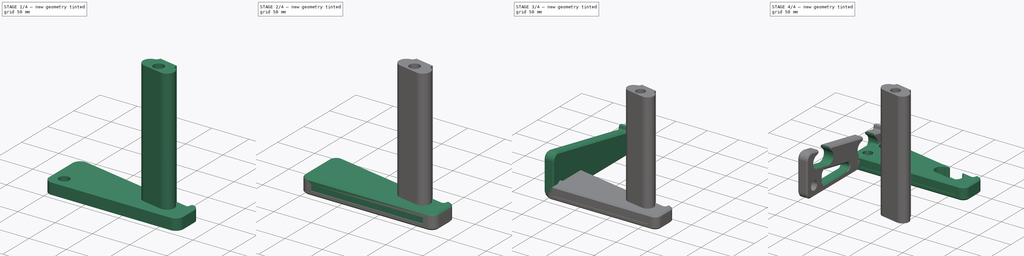
[diagram: build sequence overview — one tinted view per stage of 4, left to right]
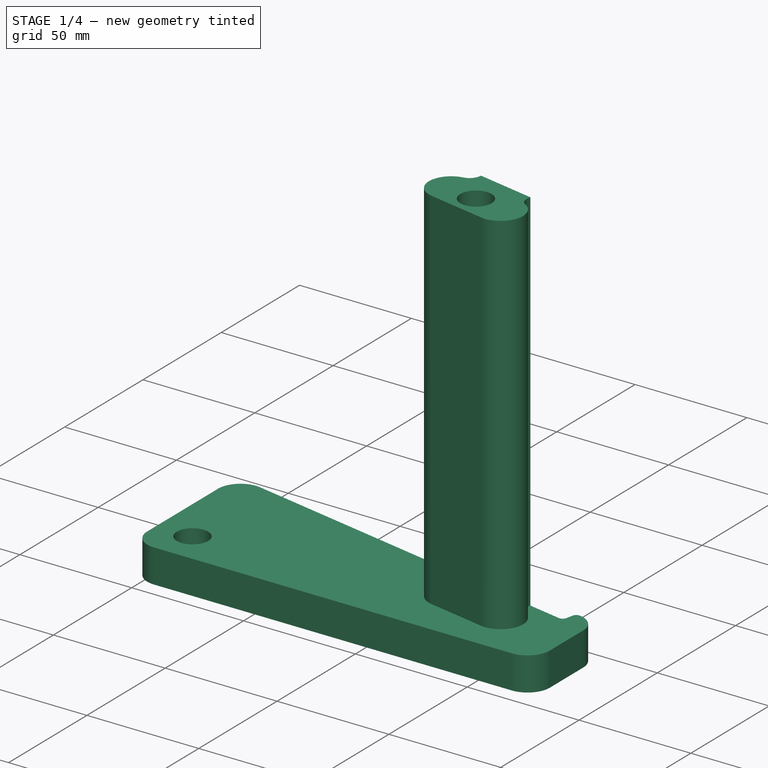
[diagram: stage 1 of 4 — iso view after this stage's code; geometry added in this stage tinted green]
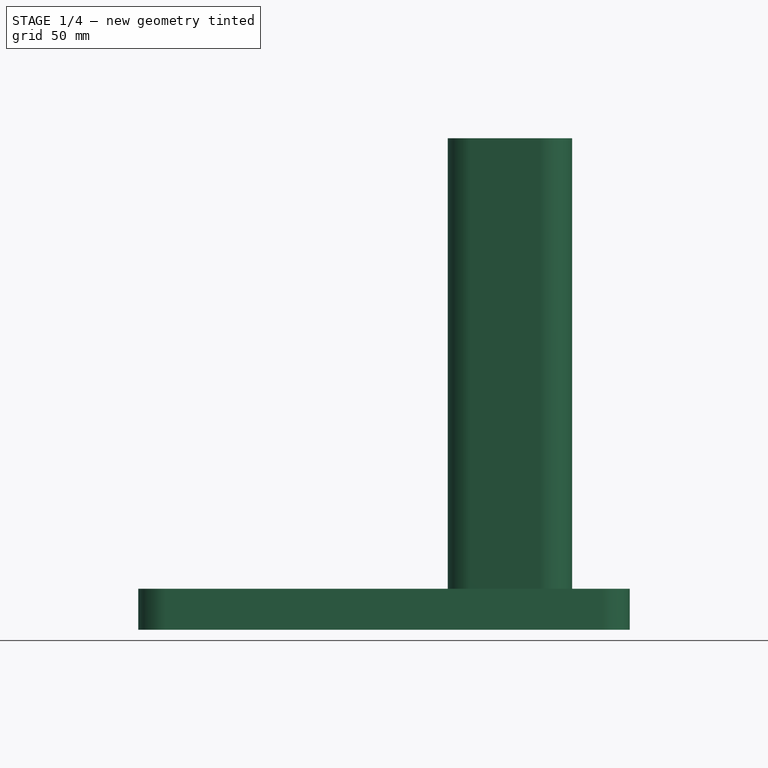
[diagram: stage 1 of 4 — front view after this stage's code; geometry added in this stage tinted green]
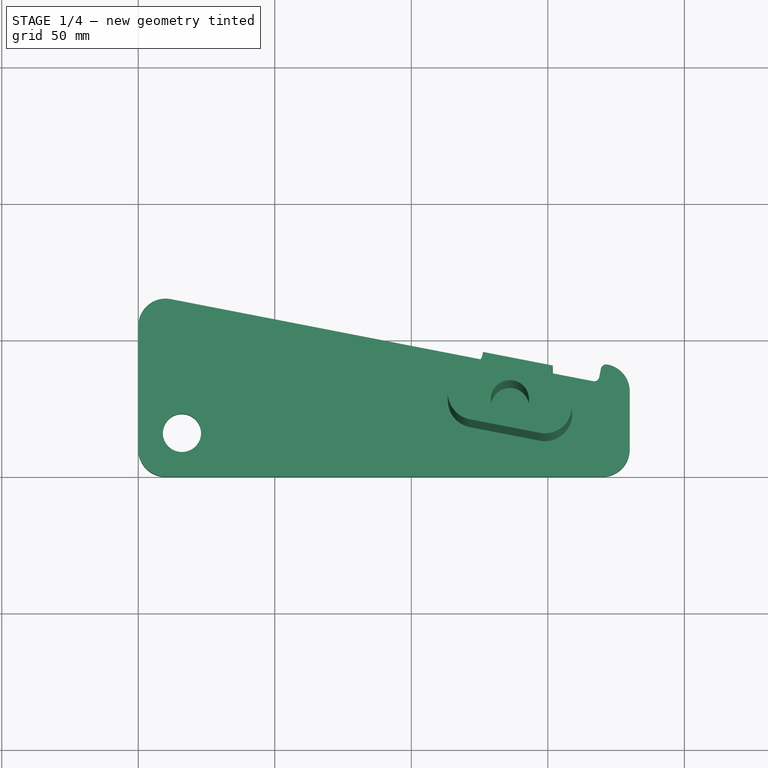
[diagram: stage 1 of 4 — top view after this stage's code; geometry added in this stage tinted green]
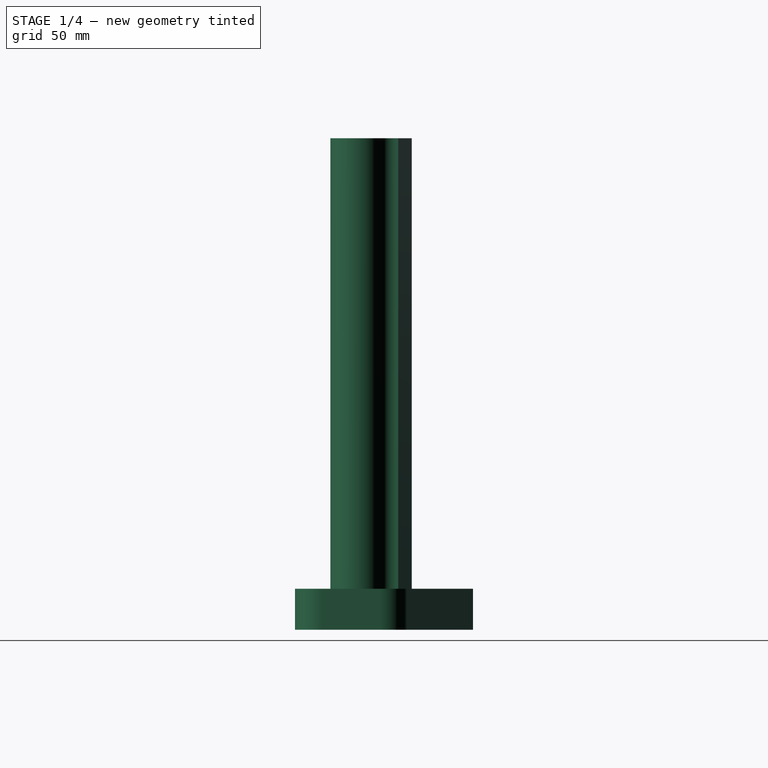
[diagram: stage 1 of 4 — right view after this stage's code; geometry added in this stage tinted green]
FCSTD DOCUMENT  (FreeCAD 0.21R33771 (Git))
Label: PedalRack
License: All rights reserved
LicenseURL: http://en.wikipedia.org/wiki/All_rights_reserved
objects: Sketcher::SketchObject×7, PartDesign::Pocket×5, PartDesign::Pad×3, PartDesign::Chamfer×3, PartDesign::Body×3, App::Part×3, Part::FeaturePython×2, Part::Part2DObjectPython×2, Spreadsheet::Sheet×1, PartDesign::FeatureBase×1
note: 37 computed .brp shape members not serialized (recipe doc carries the construction recipe); baked Part::Feature solids carry a one-line shape summary decoded from their .brp

FEATURE [Spreadsheet::Sheet] Spreadsheet  label="Cst"
  cells = B1='Rod diameter; C1='Depth; D1='Height; E1='Angle; F1='TopFillet; G1='Wall Thickness; H1='Chamfer; B2(Rod)=14; C2(Depth)=180; D2(Height)=65; E2(Angle)=11; F2(TopFillet)=10; G2(WallThickness)=15; H2(Chamfer)=2
FEATURE [Sketcher::SketchObject] Sketch
  FullyConstrained = true
  MapMode = 5
  Placement = pos=(0,0,0) rot=(0.57735,0.57735,0.57735;2.0944rad)
  Support = -> [YZ_Plane001]
  expr: Constraints[14] = <<Cst>>.Height
  expr: Constraints[15] = <<Cst>>.Depth
  expr: Constraints[16] = <<Cst>>.TopFillet
  expr: Constraints[19] = .Constraints.RodHoleDist
  expr: Constraints[23] = <<Cst>>.Angle
  expr: Constraints[33] = <<Cst>>.Rod
  sketch-geometry (13):
    g0: LineSegment StartX=0 StartY=10 StartZ=0 EndX=0 EndY=55.1837 EndZ=0
    g1: ArcOfCircle CenterX=10 CenterY=55.1837 CenterZ=0 NormalX=0 NormalY=0 NormalZ=1 AngleXU=0 Radius=10 StartAngle=1.37881 EndAngle=3.14159
    g2: LineSegment StartX=11.9081 StartY=65 StartZ=0 EndX=166.507 EndY=34.949 EndZ=0
    g3: ArcOfCircle CenterX=170 CenterY=31.2152 CenterZ=0 NormalX=0 NormalY=0 NormalZ=1 AngleXU=0 Radius=10 StartAngle=-6.2e-15 EndAngle=1.39646
    g4: LineSegment StartX=180 StartY=31.2152 StartZ=0 EndX=180 EndY=10 EndZ=0
    g5: ArcOfCircle CenterX=170 CenterY=10 CenterZ=0 NormalX=0 NormalY=0 NormalZ=1 AngleXU=0 Radius=10 StartAngle=4.71239 EndAngle=6.28319
    g6: LineSegment StartX=170 StartY=1.6e-14 StartZ=0 EndX=10 EndY=7.1e-15 EndZ=0
    g7: ArcOfCircle CenterX=10 CenterY=10 CenterZ=0 NormalX=0 NormalY=0 NormalZ=1 AngleXU=0 Radius=10 StartAngle=3.14159 EndAngle=4.71239
    g8: Circle CenterX=16 CenterY=16 CenterZ=0 NormalX=0 NormalY=0 NormalZ=1 AngleXU=0 Radius=7
    g9: LineSegment StartX=0 StartY=65.1837 StartZ=0 EndX=10 EndY=65.1837 EndZ=0
    g10: ArcOfCircle CenterX=171.388 CenterY=39.0939 CenterZ=0 NormalX=0 NormalY=0 NormalZ=1 AngleXU=0 Radius=2 StartAngle=1.39646 EndAngle=2.94961
    g11: LineSegment StartX=169.424 StartY=39.4755 StartZ=0 EndX=168.852 EndY=36.5306 EndZ=0
    g12: ArcOfCircle CenterX=166.889 CenterY=36.9123 CenterZ=0 NormalX=0 NormalY=0 NormalZ=1 AngleXU=0 Radius=2 StartAngle=4.5204 EndAngle=6.0912
  constraints (34):
    c: PointOnObject(g0,g-2)
    c: Tangent(g0,g1) = 1.5708
    c: Vertical(g4)
    c: Tangent(g4,g5) = 1.5708
    c: PointOnObject(g5,g-1)
    c: PointOnObject(g6,g-1)
    c: Tangent(g6,g7) = 1.5708
    c: PointOnObject(g0,g-2)
    c: Tangent(g1,g2) = 1.5708
    c: Tangent(g3,g4) = 1.5708
    c: Tangent(g5,g6) = 1.5708
    c: Tangent(g0,g7) = 1.5708
    c: Equal(g1,g3)
    c: Equal(g7,g5)
    c: DistanceY(g6,g1) = 65
    c: DistanceX(g0,g4) = 180
    c: Radius(g3) = 10
    c: Equal(g3,g5)
    c: DistanceX(g-1,g8) = 16  'RodHoleDist'
    c: DistanceY(g-1,g8) = 16
    c: PointOnObject(g9,g-2)
    c: Horizontal(g9)
    c: Tangent(g9,g1) = 1.5708
    c: Angle(g2,g6) = 0.191986
    c: Tangent(g3,g10) = -1.5708
    c: Perpendicular(g2,g11)
    c: Radius(g10) = 2
    c: Tangent(g10,g11) = -1.5708
    c: Tangent(g12,g11) = 1.5708
    c: Tangent(g12,g2) = -1.5708
    c: Equal(g10,g12)
    c: Distance(g11) = 3
    c: Distance(g2,g3) = 14
    c: Diameter(g8) = 14
FEATURE [PartDesign::Pad] Pad  label="BasePad"
  Direction = (1,-2e-16,3e-16)
  Length = 15
  Length2 = 10
  Placement = pos=(0,0,0) rot=(1,1,1;2.0944rad)
  Profile = -> Sketch
  ReferenceAxis = -> Sketch [N_Axis]
  Type = 0
  expr: Length = <<Cst>>.WallThickness
FEATURE [Part::FeaturePython] Clone  label="Pad001"  # Draft clone (typed FeaturePython)
  AttacherType = Attacher::AttachEngine3D
  Fuse = false
  Objects = -> [Pad]
  Placement = pos=(0,0,0) rot=(1,1,1;2.0944rad)
  Scale = (1,1,1)
FEATURE [PartDesign::FeatureBase] BaseFeature
  BaseFeature = -> Clone
FEATURE [Part::Part2DObjectPython] Clone2D001  label="RailsSketch (2D)001"  # Draft 2D object (typed FeaturePython)
  Fuse = false
  Objects = -> [Sketch004]
  Placement = pos=(0,0,5e-15) rot=(0,0,1;0rad)
  Scale = (1,1,1)
FEATURE [Sketcher::SketchObject] Sketch006
  ExternalGeometry = -> [Clone2D001]
  FullyConstrained = true
  MapMode = 5
  Support = -> [XY_Plane005]
  expr: Constraints[2] = <<Cst>>.Rod
  sketch-geometry (10):
    g0: GeomPoint X=136.132 Y=25.4277 Z=0
    g1: Circle CenterX=136.132 CenterY=25.4277 CenterZ=0 NormalX=0 NormalY=0 NormalZ=1 AngleXU=0 Radius=7
    g2: LineSegment StartX=126.07 StartY=41.7905 StartZ=0 EndX=126.26 EndY=42.7722 EndZ=0
    g3: LineSegment StartX=126.26 StartY=42.7722 StartZ=0 EndX=151.783 EndY=37.8111 EndZ=0
    g4: LineSegment StartX=151.783 StartY=37.8111 StartZ=0 EndX=151.592 EndY=36.8295 EndZ=0
    g5: LineSegment StartX=121.463 StartY=18.092 StartZ=0 EndX=146.985 EndY=13.1309 EndZ=0
    g6: ArcOfCircle CenterX=121.161 CenterY=42.7446 CenterZ=0 NormalX=0 NormalY=0 NormalZ=1 AngleXU=0 Radius=5 StartAngle=4.86024 EndAngle=6.0912
    g7: ArcOfCircle CenterX=156.5 CenterY=35.8755 CenterZ=0 NormalX=0 NormalY=0 NormalZ=1 AngleXU=0 Radius=5 StartAngle=2.94961 EndAngle=4.18057
    g8: ArcOfCircle CenterX=123.371 CenterY=27.9082 CenterZ=0 NormalX=0 NormalY=0 NormalZ=1 AngleXU=0 Radius=10 StartAngle=1.71865 EndAngle=4.5204
    g9: ArcOfCircle CenterX=148.893 CenterY=22.9472 CenterZ=0 NormalX=0 NormalY=0 NormalZ=1 AngleXU=0 Radius=10 StartAngle=4.5204 EndAngle=7.32216
  constraints (21):
    c: Symmetric(g-8,g-5,g0)
    c: Coincident(g1,g0)
    c: Diameter(g1) = 14
    c: Coincident(g2,g-7)
    c: Coincident(g2,g-3)
    c: Coincident(g3,g2)
    c: Coincident(g3,g-4)
    c: Coincident(g4,g3)
    c: Coincident(g4,g-6)
    c: Coincident(g5,g-8)
    c: Coincident(g5,g-5)
    c: Coincident(g6,g-7)
    c: Coincident(g6,g2)
    c: Coincident(g7,g-6)
    c: Coincident(g7,g4)
    c: Coincident(g8,g-8)
    c: Coincident(g8,g6)
    c: Coincident(g8,g5)
    c: Coincident(g9,g-5)
    c: Coincident(g9,g5)
    c: Coincident(g9,g7)
FEATURE [PartDesign::Pad] Pad002  label="Pad003"
  Direction = (0,0,1)
  Length = 180
  Length2 = 10
  Profile = -> Sketch006
  ReferenceAxis = -> Sketch006 [N_Axis]
  Refine = true
  Type = 0
FEATURE [PartDesign::Body] Body002
  Group = -> [Clone2D001,Sketch006,Pad002]
  Origin = -> Origin005
  Tip = -> Pad002
FEATURE [App::Part] Part002  label="Rail"
  Group = -> [Body002]
  Origin = -> Origin004
  Placement = pos=(-108.5,-7,0) rot=(0,0,1;0rad)
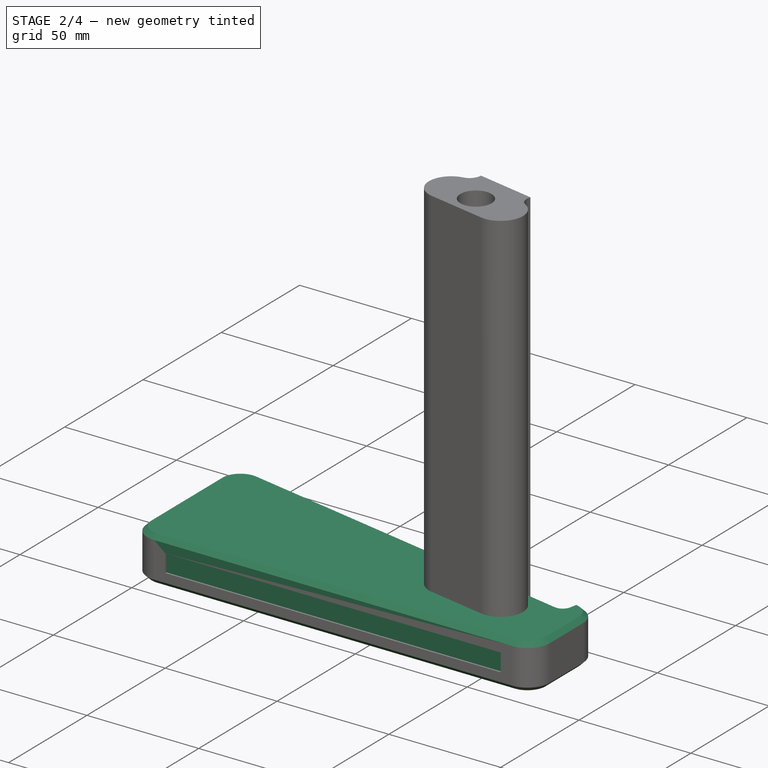
[diagram: stage 2 of 4 — iso view after this stage's code; geometry added in this stage tinted green]
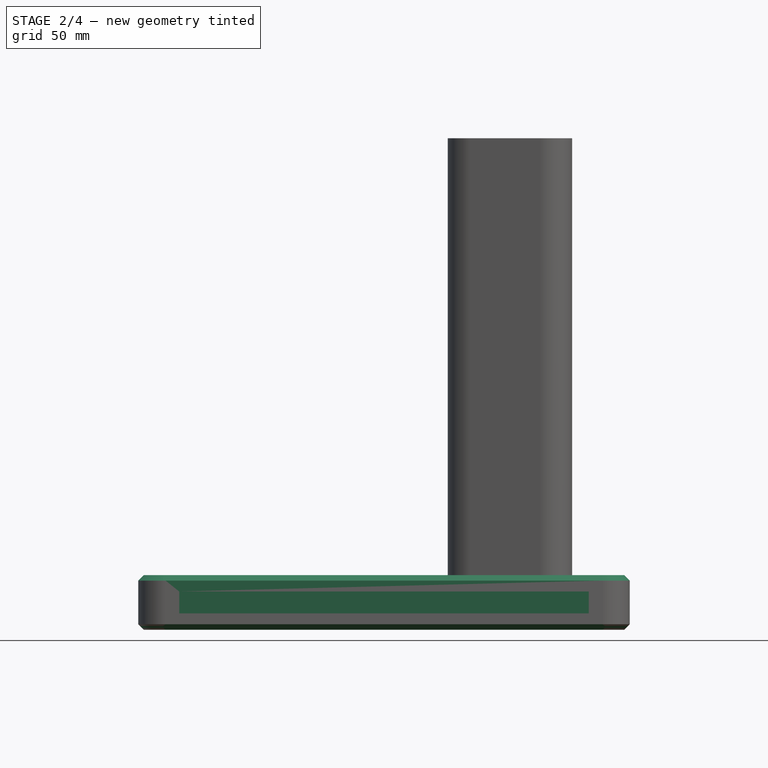
[diagram: stage 2 of 4 — front view after this stage's code; geometry added in this stage tinted green]
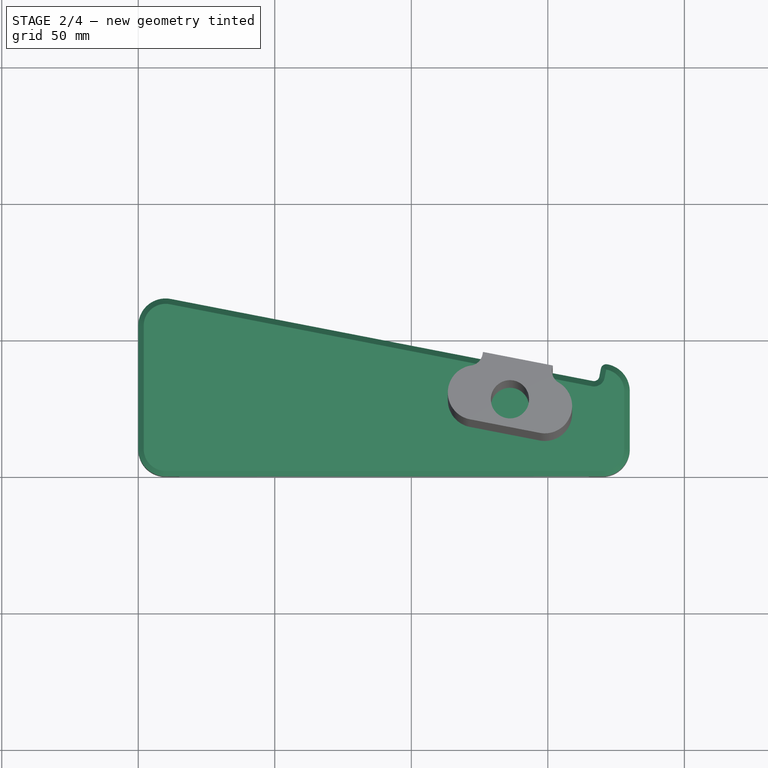
[diagram: stage 2 of 4 — top view after this stage's code; geometry added in this stage tinted green]
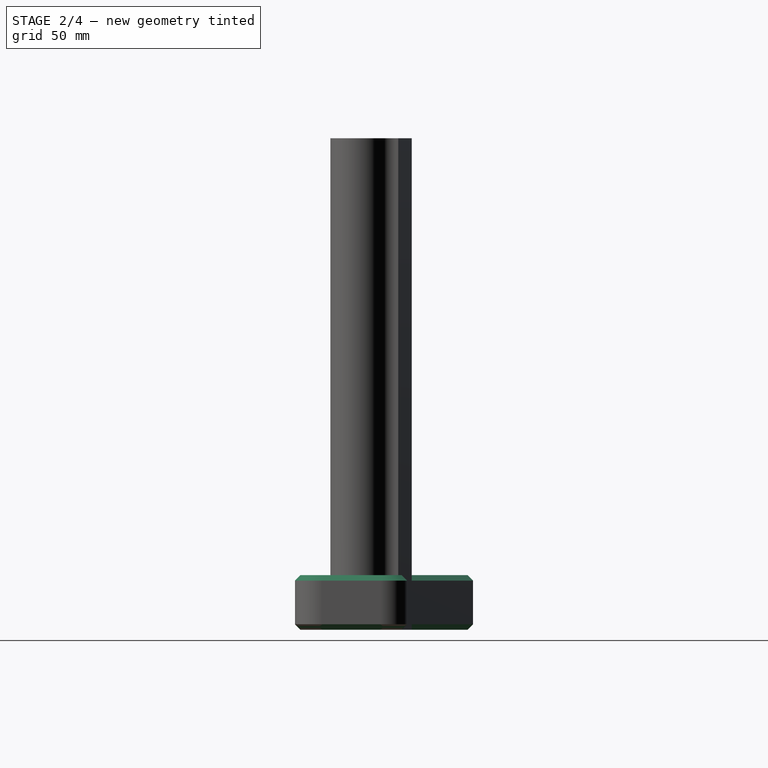
[diagram: stage 2 of 4 — right view after this stage's code; geometry added in this stage tinted green]
FEATURE [Sketcher::SketchObject] Sketch001
  ExternalGeometry = -> [BaseFeature]
  FullyConstrained = true
  MapMode = 5
  Placement = pos=(-6.7e-15,3.3e-15,15) rot=(0,0,1;0rad)
  Support = -> [BaseFeature]
  sketch-geometry (11):
    g0: LineSegment StartX=11.9081 StartY=65 StartZ=0 EndX=166.507 EndY=34.949 EndZ=0
    g1: LineSegment StartX=180 StartY=31.2152 StartZ=0 EndX=180 EndY=10 EndZ=0
    g2: LineSegment StartX=170 StartY=-3.38e-14 StartZ=0 EndX=10 EndY=3.6e-15 EndZ=0
    g3: LineSegment StartX=-1.8e-15 StartY=10 StartZ=0 EndX=1.0409e-12 EndY=55.1837 EndZ=0
    g4: ArcOfCircle CenterX=10 CenterY=55.1837 CenterZ=0 NormalX=0 NormalY=0 NormalZ=1 AngleXU=0 Radius=10 StartAngle=1.37881 EndAngle=3.14159
    g5: ArcOfCircle CenterX=170 CenterY=31.2152 CenterZ=0 NormalX=0 NormalY=0 NormalZ=1 AngleXU=0 Radius=10 StartAngle=0 EndAngle=1.39646
    g6: ArcOfCircle CenterX=170 CenterY=10 CenterZ=0 NormalX=0 NormalY=0 NormalZ=1 AngleXU=0 Radius=10 StartAngle=4.71239 EndAngle=6.28319
    g7: ArcOfCircle CenterX=10 CenterY=10 CenterZ=0 NormalX=0 NormalY=0 NormalZ=1 AngleXU=0 Radius=10 StartAngle=3.14159 EndAngle=4.71239
    g8: LineSegment StartX=169.424 StartY=39.4755 StartZ=0 EndX=168.852 EndY=36.5306 EndZ=0
    g9: ArcOfCircle CenterX=171.388 CenterY=39.0939 CenterZ=0 NormalX=0 NormalY=0 NormalZ=1 AngleXU=0 Radius=2 StartAngle=1.39646 EndAngle=2.94961
    g10: ArcOfCircle CenterX=166.889 CenterY=36.9123 CenterZ=0 NormalX=0 NormalY=0 NormalZ=1 AngleXU=0 Radius=2 StartAngle=4.5204 EndAngle=6.0912
  constraints (25):
    c: Coincident(g6,g1)
    c: Coincident(g0,g4)
    c: Coincident(g3,g7)
    c: Tangent(g4,g3) = 1.5708
    c: Vertical(g2,g7)
    c: Horizontal(g6,g1)
    c: Coincident(g3,g-4)
    c: Coincident(g2,g7)
    c: Coincident(g2,g-8)
    c: Coincident(g2,g-8)
    c: Coincident(g6,g2)
    c: Coincident(g1,g-5)
    c: Coincident(g1,g-5)
    c: Coincident(g5,g1)
    c: Horizontal(g5,g1)
    c: Coincident(g0,g-3)
    c: Coincident(g3,g-4)
    c: Coincident(g0,g-3)
    c: Coincident(g5,g-7)
    c: Coincident(g8,g-6)
    c: Coincident(g8,g-6)
    c: Coincident(g9,g8)
    c: Tangent(g9,g5) = -1.5708
    c: Coincident(g10,g0)
    c: Tangent(g10,g8) = 1.5708
FEATURE [PartDesign::Pad] Pad001  label="Pad002"
  BaseFeature = -> BaseFeature
  Direction = (-4e-16,2e-16,1)
  Length = 5
  Length2 = 10
  Profile = -> Sketch001
  ReferenceAxis = -> Sketch001 [N_Axis]
  Refine = true
  Type = 0
FEATURE [PartDesign::Chamfer] Chamfer001
  Angle = 45
  Base = -> Pad001 [Edge7,Edge17]
  BaseFeature = -> Pad001
  ChamferType = 0
  FlipDirection = false
  Size = 2
  Size2 = 1
  SupportTransform = false
  UseAllEdges = false
FEATURE [Sketcher::SketchObject] Sketch002
  ExternalGeometry = -> [Pad001]
  FullyConstrained = true
  MapMode = 5
  Placement = pos=(0,-2e-16,0) rot=(1,0,0;1.5708rad)
  Support = -> [Pad001]
  sketch-geometry (7):
    g0: LineSegment StartX=165 StartY=14 StartZ=0 EndX=15 EndY=14 EndZ=0
    g1: LineSegment StartX=15 StartY=14 StartZ=0 EndX=15 EndY=6 EndZ=0
    g2: LineSegment StartX=15 StartY=6 StartZ=0 EndX=165 EndY=6 EndZ=0
    g3: LineSegment StartX=165 StartY=6 StartZ=0 EndX=165 EndY=14 EndZ=0
    g4: GeomPoint X=170 Y=10 Z=0
    g5: GeomPoint X=10 Y=10 Z=0
    g6: LineSegment StartX=10 StartY=10 StartZ=0 EndX=170 EndY=10 EndZ=0
  constraints (15):
    c: Coincident(g0,g1)
    c: Coincident(g1,g2)
    c: Coincident(g2,g3)
    c: Coincident(g3,g0)
    c: Horizontal(g0)
    c: Horizontal(g2)
    c: Vertical(g1)
    c: DistanceY(g1,g1) = 8
    c: Coincident(g6,g5)
    c: Coincident(g6,g4)
    c: Symmetric(g0,g2,g6)
    c: Symmetric(g-3,g-4,g5)
    c: Symmetric(g-6,g-5,g4)
    c: DistanceX(g0,g-6) = 5
    c: DistanceX(g-3,g0) = 5
FEATURE [PartDesign::Pocket] Pocket
  BaseFeature = -> Chamfer001
  Direction = (3e-16,1,-7e-16)
  Length = 0.75
  Length2 = 5
  Profile = -> Sketch002
  ReferenceAxis = -> Sketch002 [N_Axis]
  Type = 0
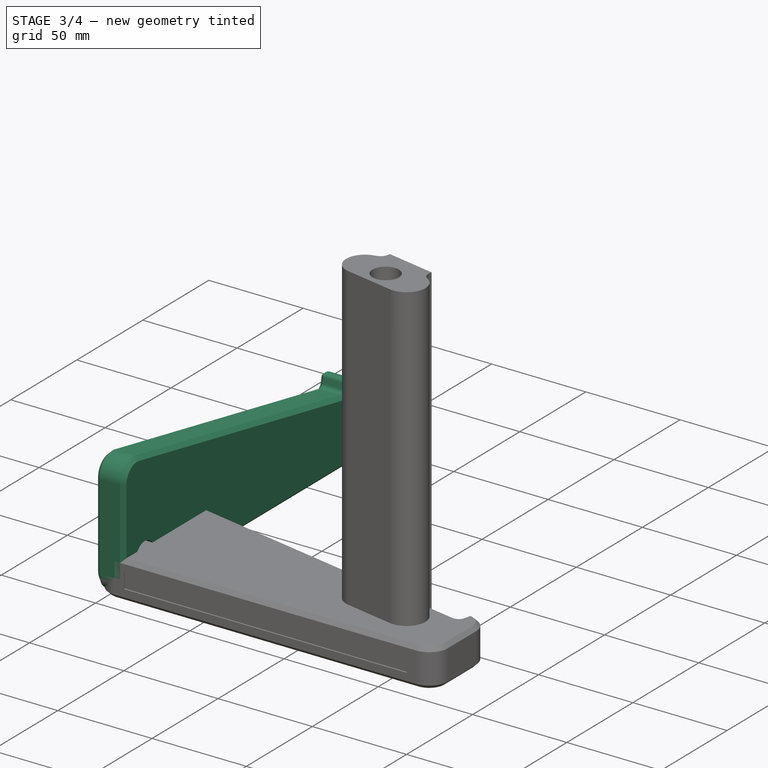
[diagram: stage 3 of 4 — iso view after this stage's code; geometry added in this stage tinted green]
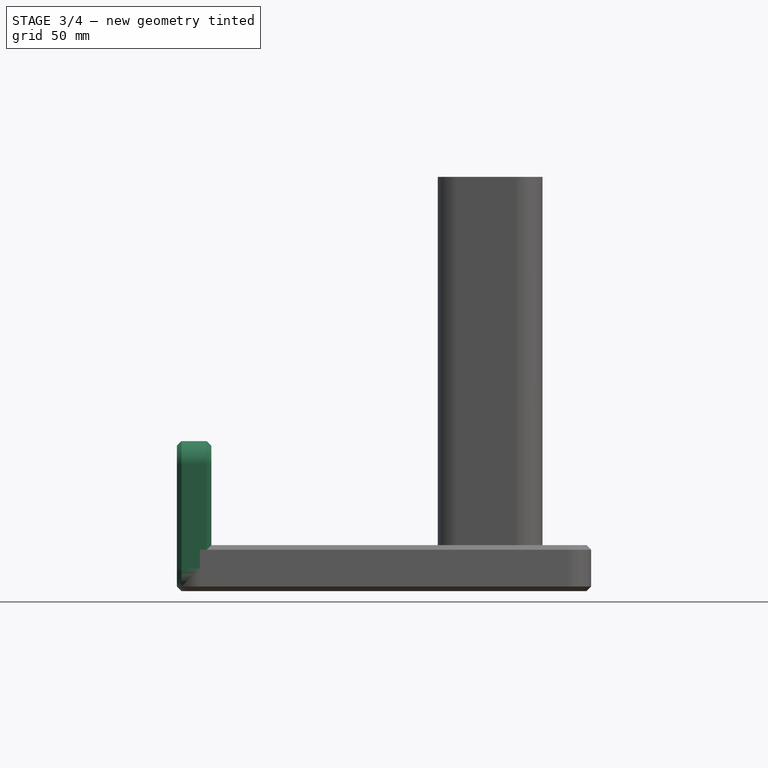
[diagram: stage 3 of 4 — front view after this stage's code; geometry added in this stage tinted green]
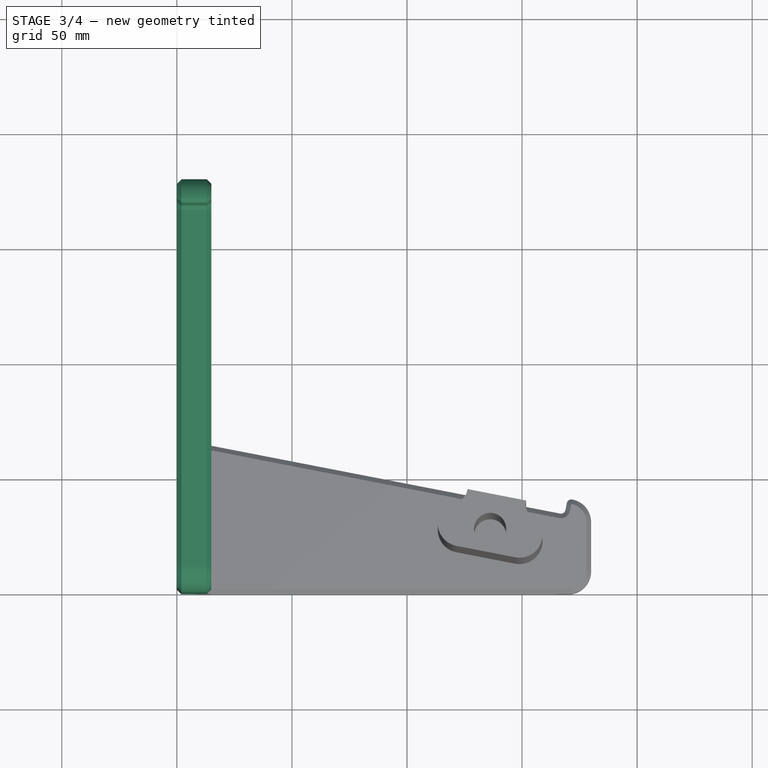
[diagram: stage 3 of 4 — top view after this stage's code; geometry added in this stage tinted green]
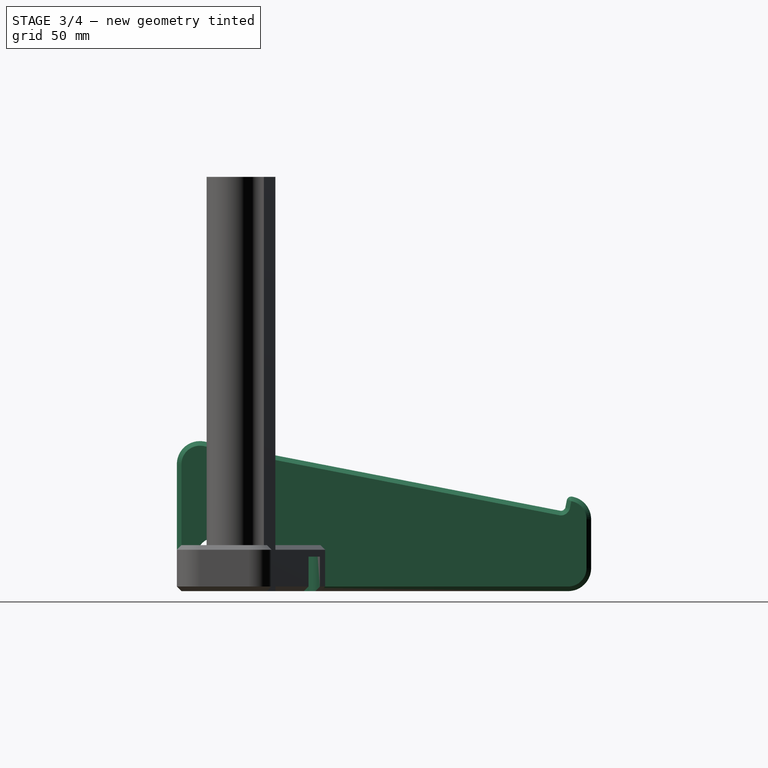
[diagram: stage 3 of 4 — right view after this stage's code; geometry added in this stage tinted green]
FEATURE [PartDesign::Chamfer] Chamfer  label="OuterChamfer"
  Angle = 45
  Base = -> Pad [Edge4,Edge3]
  BaseFeature = -> Pad
  ChamferType = 0
  FlipDirection = false
  Placement = pos=(0,0,0) rot=(1,1,1;2.0944rad)
  Size = 2
  Size2 = 1
  SupportTransform = false
  UseAllEdges = false
  expr: Size = <<Cst>>.Chamfer
FEATURE [Sketcher::SketchObject] Sketch003
  ExternalGeometry = -> [Pad]
  FullyConstrained = true
  MapMode = 5
  Placement = pos=(0,0,6.6e-15) rot=(0.707107,0.707107,0;3.14159rad)
  Support = -> [Pad]
  sketch-geometry (5):
    g0: LineSegment StartX=165 StartY=11.5 StartZ=0 EndX=15 EndY=11.5 EndZ=0
    g1: LineSegment StartX=15 StartY=11.5 StartZ=0 EndX=15 EndY=3.5 EndZ=0
    g2: LineSegment StartX=15 StartY=3.5 StartZ=0 EndX=165 EndY=3.5 EndZ=0
    g3: LineSegment StartX=165 StartY=3.5 StartZ=0 EndX=165 EndY=11.5 EndZ=0
    g4: LineSegment StartX=10 StartY=7.5 StartZ=0 EndX=170 EndY=7.5 EndZ=0
  constraints (14):
    c: Coincident(g0,g1)
    c: Coincident(g1,g2)
    c: Coincident(g2,g3)
    c: Coincident(g3,g0)
    c: Horizontal(g0)
    c: Horizontal(g2)
    c: Vertical(g1)
    c: Symmetric(g0,g2,g4)
    c: DistanceY(g1,g0) = 8
    c: Vertical(g3)
    c: PointOnObject(g4,g-4)
    c: Symmetric(g-3,g-3,g4)
    c: DistanceX(g0,g-4) = 5
    c: DistanceX(g-3,g0) = 5
FEATURE [PartDesign::Pocket] Pocket001  label="FeetPocket"
  BaseFeature = -> Chamfer
  Direction = (-4e-16,5e-16,1)
  Length = 0.75
  Length2 = 5
  Placement = pos=(0,0,0) rot=(1,1,1;2.0944rad)
  Profile = -> Sketch003
  ReferenceAxis = -> Sketch003 [N_Axis]
  Type = 0
FEATURE [PartDesign::Body] Body  label="Middle"
  Group = -> [Sketch,Pad,Chamfer,Sketch003,Pocket001,Sketch004,Pocket002,Sketch005,Pocket003,Chamfer002]
  Origin = -> Origin001
  Tip = -> Chamfer002
FEATURE [App::Part] Part  label="MiddlePart"
  Group = -> [Body]
  Origin = -> Origin
  Placement = pos=(0,0,0) rot=(0,1,0;4.71239rad)
FEATURE [Part::Part2DObjectPython] Clone2D  label="RailsSketch (2D)"  # Draft 2D object (typed FeaturePython)
  Fuse = false
  Objects = -> [Sketch004]
  Placement = pos=(0,-6.7e-15,5e-15) rot=(0,0,1;0rad)
  Scale = (1,1,1)
  Support = -> [Pad001]
FEATURE [PartDesign::Pocket] Pocket004
  BaseFeature = -> Pocket
  Direction = (0,0,-1)
  Length = 15
  Length2 = 5
  Profile = -> Clone2D
  ReferenceAxis = -> Clone2D [N_Axis]
  Reversed = true
  Type = 0
  expr: Length = <<Cst>>.WallThickness
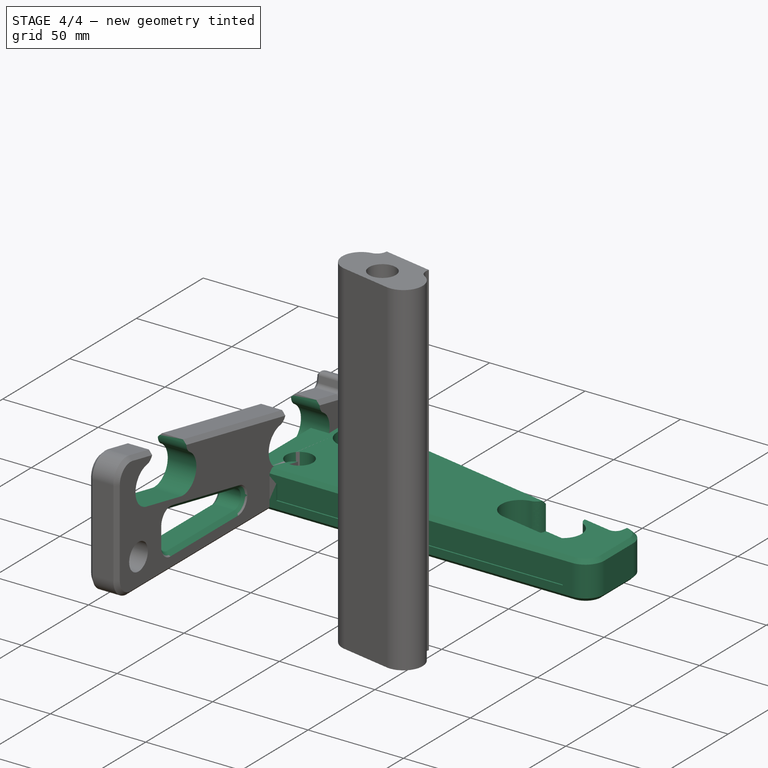
[diagram: stage 4 of 4 — iso view after this stage's code; geometry added in this stage tinted green]
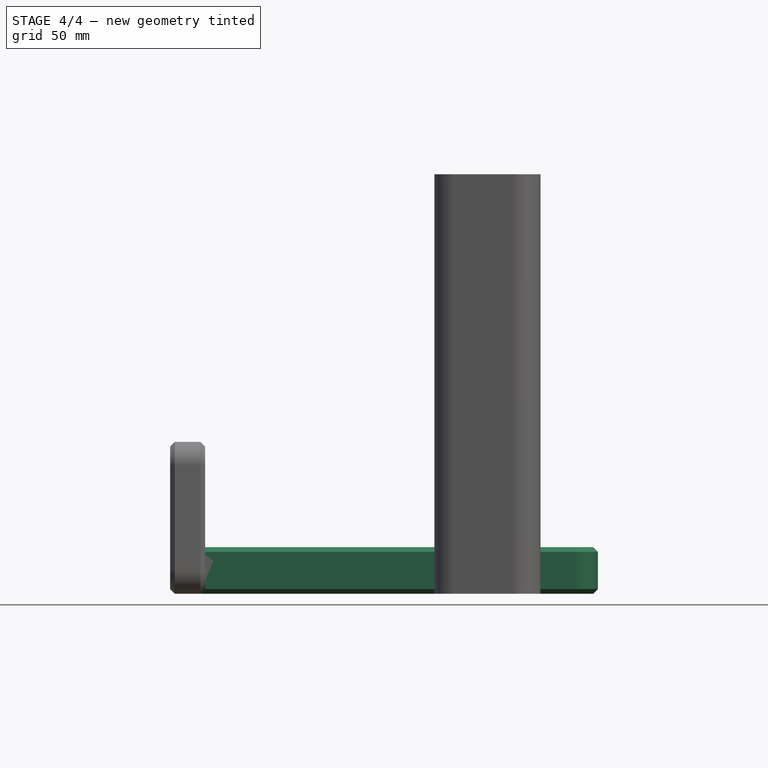
[diagram: stage 4 of 4 — front view after this stage's code; geometry added in this stage tinted green]
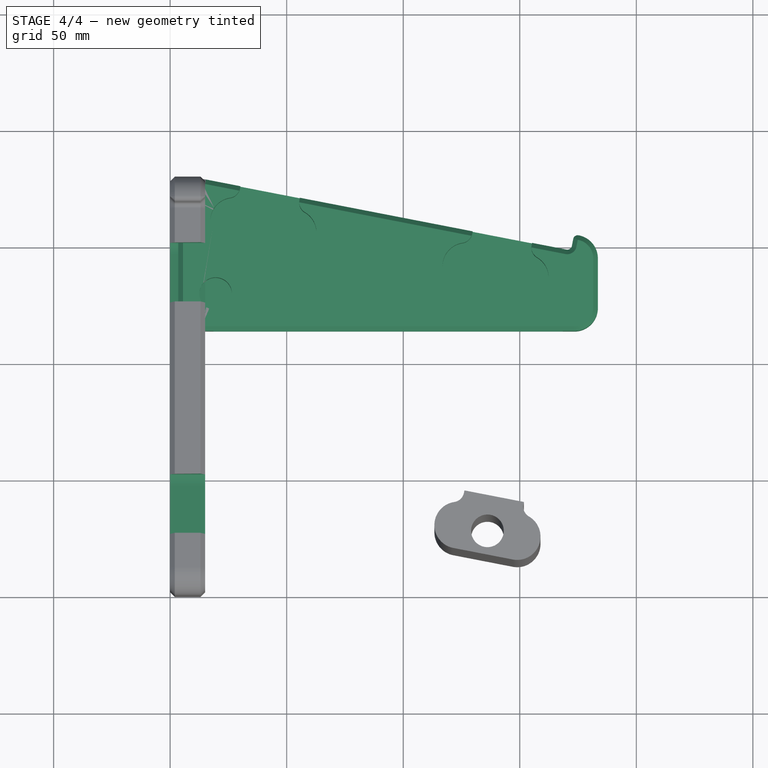
[diagram: stage 4 of 4 — top view after this stage's code; geometry added in this stage tinted green]
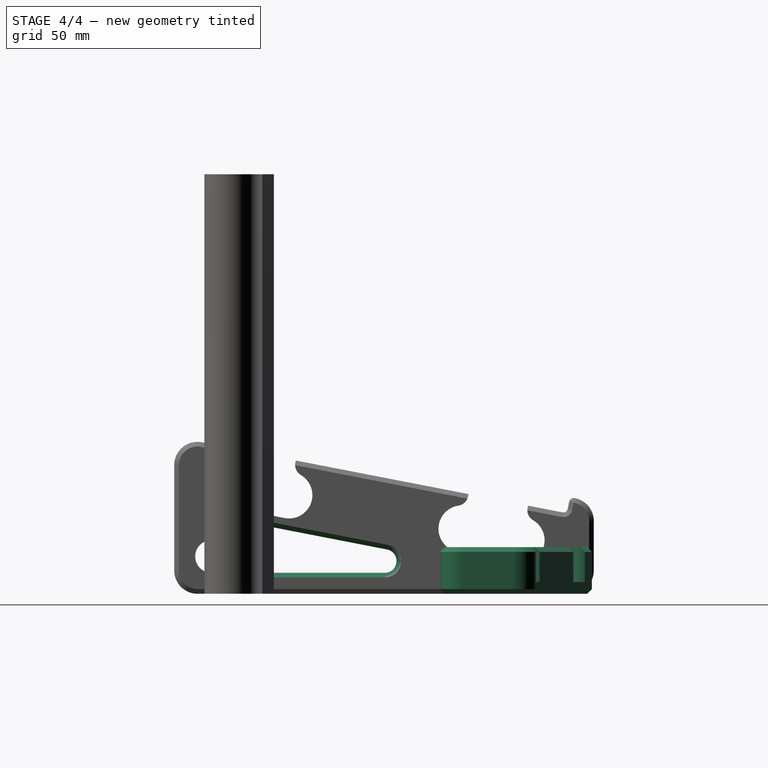
[diagram: stage 4 of 4 — right view after this stage's code; geometry added in this stage tinted green]
FEATURE [Sketcher::SketchObject] Sketch004  label="RailsSketch"
  ExternalGeometry = -> [Pad]
  FullyConstrained = true
  MapMode = 5
  Placement = pos=(15,-6.7e-15,5e-15) rot=(0.57735,0.57735,0.57735;2.0944rad)
  Support = -> [Pad]
  sketch-geometry (20):
    g0: LineSegment StartX=21.8352 StartY=37.4577 StartZ=0 EndX=47.3575 EndY=32.4966 EndZ=0
    g1: ArcOfCircle CenterX=49.2655 CenterY=42.3129 CenterZ=0 NormalX=0 NormalY=0 NormalZ=1 AngleXU=0 Radius=10 StartAngle=4.5204 EndAngle=7.32216
    g2: LineSegment StartX=51.964 StartY=56.1952 StartZ=0 EndX=52.1548 EndY=57.1768 EndZ=0
    g3: LineSegment StartX=52.1548 StartY=57.1768 StartZ=0 EndX=26.6325 EndY=62.1379 EndZ=0
    g4: LineSegment StartX=22.2701 StartY=57.1648 StartZ=0 EndX=54.3366 EndY=50.9317 EndZ=0
    g5: LineSegment StartX=23.7432 StartY=47.2739 StartZ=0 EndX=49.2655 EndY=42.3129 EndZ=0
    g6: LineSegment StartX=52.1548 StartY=57.1768 StartZ=0 EndX=47.3575 EndY=32.4966 EndZ=0
    g7: ArcOfCircle CenterX=23.7432 CenterY=47.2739 CenterZ=0 NormalX=0 NormalY=0 NormalZ=1 AngleXU=0 Radius=10 StartAngle=1.71865 EndAngle=4.5204
    g8: ArcOfCircle CenterX=56.8721 CenterY=55.2412 CenterZ=0 NormalX=0 NormalY=0 NormalZ=1 AngleXU=0 Radius=5 StartAngle=2.94961 EndAngle=4.18057
    g9: LineSegment StartX=26.6325 StartY=62.1379 StartZ=0 EndX=26.4417 EndY=61.1562 EndZ=0
    g10: ArcOfCircle CenterX=21.5336 CenterY=62.1103 CenterZ=0 NormalX=0 NormalY=0 NormalZ=1 AngleXU=0 Radius=5 StartAngle=4.86024 EndAngle=6.0912
    g11: LineSegment StartX=121.463 StartY=18.092 StartZ=0 EndX=146.985 EndY=13.1309 EndZ=0
    g12: ArcOfCircle CenterX=123.371 CenterY=27.9082 CenterZ=0 NormalX=0 NormalY=0 NormalZ=1 AngleXU=0 Radius=10 StartAngle=1.71865 EndAngle=4.5204
    g13: ArcOfCircle CenterX=121.161 CenterY=42.7446 CenterZ=0 NormalX=0 NormalY=0 NormalZ=1 AngleXU=0 Radius=5 StartAngle=4.86024 EndAngle=6.0912
    g14: LineSegment StartX=126.26 StartY=42.7722 StartZ=0 EndX=126.07 EndY=41.7905 EndZ=0
    g15: LineSegment StartX=151.783 StartY=37.8111 StartZ=0 EndX=126.26 EndY=42.7722 EndZ=0
    g16: LineSegment StartX=151.592 StartY=36.8295 StartZ=0 EndX=151.783 EndY=37.8111 EndZ=0
    g17: ArcOfCircle CenterX=156.5 CenterY=35.8755 CenterZ=0 NormalX=0 NormalY=0 NormalZ=1 AngleXU=0 Radius=5 StartAngle=2.94961 EndAngle=4.18057
    g18: ArcOfCircle CenterX=148.893 CenterY=22.9472 CenterZ=0 NormalX=0 NormalY=0 NormalZ=1 AngleXU=0 Radius=10 StartAngle=4.5204 EndAngle=7.32216
    g19: LineSegment StartX=151.783 StartY=37.8111 StartZ=0 EndX=146.985 EndY=13.1309 EndZ=0
  constraints (52):
    c: Coincident(g4,g7) = 1.5708
    c: Tangent(g0,g1) = -1.5708
    c: Coincident(g2,g3)
    c: Coincident(g4,g1)
    c: Coincident(g5,g7)
    c: Coincident(g5,g1)
    c: Equal(g7,g1)
    c: Coincident(g6,g2)
    c: Coincident(g6,g0)
    c: PointOnObject(g1,g6)
    c: PointOnObject(g2,g-3)
    c: PointOnObject(g3,g-3)
    c: Parallel(g4,g-3)
    c: Parallel(g5,g-3)
    c: Coincident(g9,g3)
    c: Perpendicular(g-3,g9)
    c: Tangent(g10,g9) = 1.5708
    c: Tangent(g10,g7) = 1.5708
    c: Tangent(g8,g2) = 1.5708
    c: Perpendicular(g-3,g2)
    c: Equal(g2,g9)
    c: Tangent(g8,g1) = 1.5708
    c: Tangent(g7,g0) = -1.5708
    c: Distance(g2) = 1
    c: Radius(g8) = 5
    c: Radius(g1) = 10
    c: Distance(g3,g2) = 26
    c: Distance(g-3,g3) = 15
    c: Tangent(g11,g18) = -1.5708
    c: Coincident(g16,g15)
    c: Coincident(g19,g16)
    c: Coincident(g19,g11)
    c: PointOnObject(g18,g19)
    c: Coincident(g14,g15)
    c: Tangent(g13,g14) = 1.5708
    c: Tangent(g17,g16) = 1.5708
    c: Equal(g16,g14)
    c: Tangent(g17,g18) = 1.5708
    c: Tangent(g12,g11) = -1.5708
    c: Equal(g2,g16) = 1
    c: Equal(g8,g17) = 5
    c: Equal(g1,g18) = 10
    c: PointOnObject(g15,g-3)
    c: PointOnObject(g14,g-3)
    c: PointOnObject(g17,g4)
    c: PointOnObject(g18,g5)
    c: Distance(g15,g-3) = 15
    c: Perpendicular(g-3,g14)
    c: PointOnObject(g13,g4)
    c: PointOnObject(g12,g5)
    c: Tangent(g12,g13) = 1.5708
    c: Equal(g15,g3)
FEATURE [PartDesign::Pocket] Pocket002  label="RailsPocket"
  BaseFeature = -> Pocket001
  Direction = (-1,4e-16,-4e-16)
  Length = 5
  Length2 = 5
  Placement = pos=(0,0,0) rot=(1,1,1;2.0944rad)
  Profile = -> Sketch004
  ReferenceAxis = -> Sketch004 [N_Axis]
  Type = 1
FEATURE [Sketcher::SketchObject] Sketch005
  ExternalGeometry = -> [Pad]
  FullyConstrained = true
  MapMode = 5
  Placement = pos=(15,-6.7e-15,5e-15) rot=(0.57735,0.57735,0.57735;2.0944rad)
  Support = -> [Pad]
  sketch-geometry (9):
    g0: LineSegment StartX=90.3364 StartY=9 StartZ=0 EndX=40 EndY=9 EndZ=0
    g1: ArcOfCircle CenterX=40 CenterY=14 CenterZ=0 NormalX=0 NormalY=0 NormalZ=1 AngleXU=0 Radius=5 StartAngle=3.14159 EndAngle=4.71239
    g2: LineSegment StartX=35 StartY=14 StartZ=0 EndX=35 EndY=23.8844 EndZ=0
    g3: ArcOfCircle CenterX=40 CenterY=23.8844 CenterZ=0 NormalX=0 NormalY=0 NormalZ=1 AngleXU=0 Radius=5 StartAngle=1.37881 EndAngle=3.14159
    g4: LineSegment StartX=40.954 StartY=28.7925 StartZ=0 EndX=91.2904 EndY=19.0081 EndZ=0
    g5: ArcOfCircle CenterX=90.3364 CenterY=14.1 CenterZ=0 NormalX=0 NormalY=0 NormalZ=1 AngleXU=0 Radius=5 StartAngle=1e-16 EndAngle=1.37881
    g6: LineSegment StartX=95.3364 StartY=14.1 StartZ=0 EndX=95.3364 EndY=14 EndZ=0
    g7: ArcOfCircle CenterX=90.3364 CenterY=14 CenterZ=0 NormalX=0 NormalY=0 NormalZ=1 AngleXU=0 Radius=5 StartAngle=4.71239 EndAngle=6.28319
    g8: LineSegment StartX=40.954 StartY=28.7925 StartZ=0 EndX=46.6783 EndY=58.2414 EndZ=0
  constraints (27):
    c: Horizontal(g0)
    c: Tangent(g0,g1) = 1.5708
    c: Coincident(g1,g2)
    c: Vertical(g2)
    c: Coincident(g5,g6)
    c: Tangent(g6,g7) = 1.5708
    c: Coincident(g7,g0)
    c: Vertical(g6)
    c: Horizontal(g5,g5)
    c: Vertical(g7,g0)
    c: Horizontal(g1,g1)
    c: Tangent(g3,g4) = 1.5708
    c: Radius(g7) = 5
    c: Equal(g7,g5)
    c: Equal(g7,g3)
    c: Coincident(g3,g2)
    c: Tangent(g5,g4) = 1.5708
    c: Equal(g1,g7)
    c: Horizontal(g2,g3)
    c: DistanceX(g-1,g1) = 35
    c: DistanceY(g6,g6) = 0.1
    c: Tangent(g0,g-3)
    c: Parallel(g4,g-4)
    c: Coincident(g8,g3)
    c: PointOnObject(g8,g-4)
    c: Perpendicular(g-4,g8)
    c: Distance(g8) = 30
FEATURE [PartDesign::Pocket] Pocket003  label="CableHole"
  BaseFeature = -> Pocket002
  Direction = (-1,4e-16,-4e-16)
  Length = 5
  Length2 = 5
  Placement = pos=(0,0,0) rot=(1,1,1;2.0944rad)
  Profile = -> Sketch005
  ReferenceAxis = -> Sketch005 [N_Axis]
  Type = 1
FEATURE [PartDesign::Chamfer] Chamfer002  label="CableHoleChamfer"
  Angle = 45
  Base = -> Pocket003 [Edge89,Edge59]
  BaseFeature = -> Pocket003
  ChamferType = 0
  FlipDirection = false
  Placement = pos=(0,0,0) rot=(1,1,1;2.0944rad)
  Size = 2
  Size2 = 1
  SupportTransform = false
  UseAllEdges = false
  expr: Size = <<Cst>>.Chamfer
FEATURE [PartDesign::Body] Body001  label="Body"
  BaseFeature = -> Clone
  Group = -> [BaseFeature,Sketch001,Pad001,Chamfer001,Sketch002,Pocket,Clone2D,Pocket004]
  Origin = -> Origin003
  Tip = -> Pocket004
FEATURE [App::Part] Part001  label="LeftPart"
  Group = -> [Clone,Body001]
  Origin = -> Origin002
  Placement = pos=(3.5,104.5,20) rot=(1,0,0;3.14159rad)
FEATURE [Part::FeaturePython] Clone001  label="RightPart"  # Draft clone (typed FeaturePython)
  AttacherType = Attacher::AttachEngine3D
  Fuse = false
  Objects = -> [Part001]
  Placement = pos=(3.5,114,20) rot=(0,0,1;0rad)
  Scale = (1,1,-1)
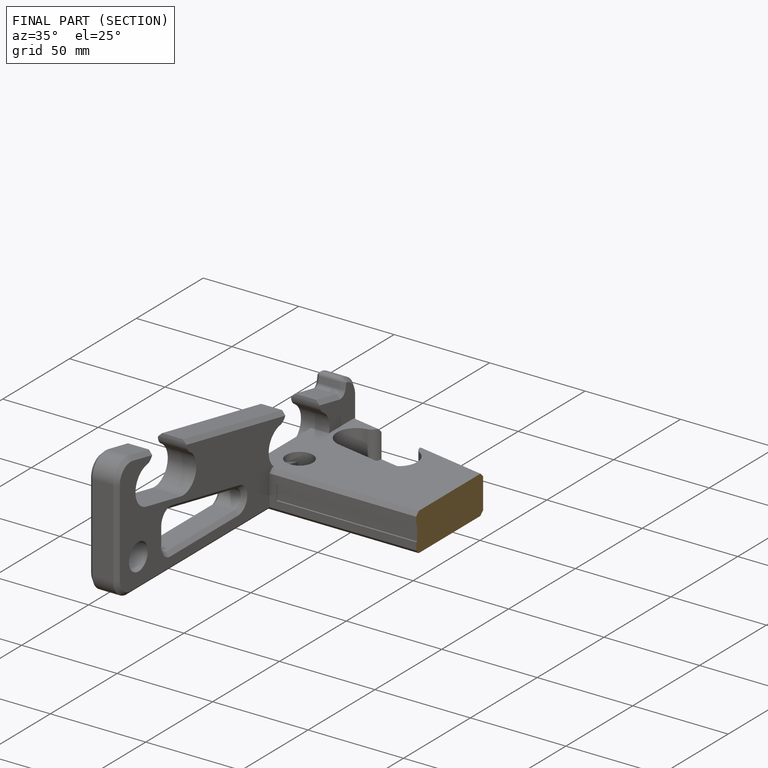
[diagram: finished part — half-section view (interior)]
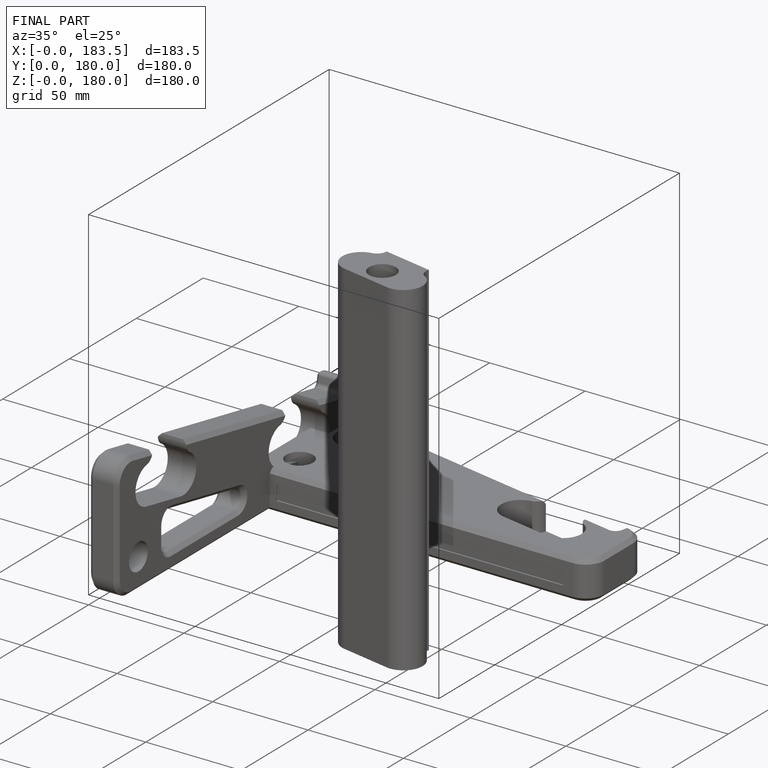
[diagram: finished part — iso view with bounding-box wireframe]
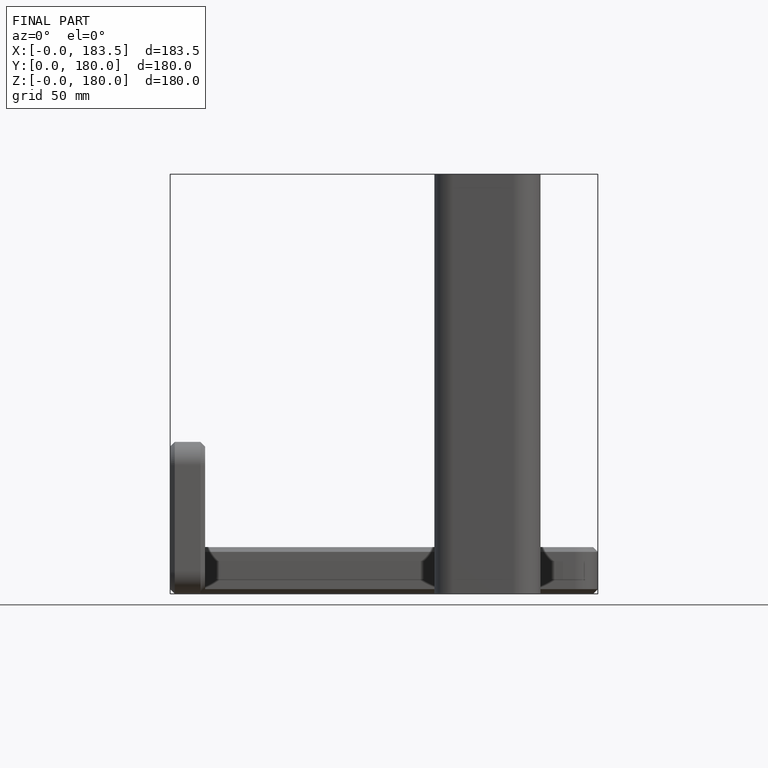
[diagram: finished part — front view with bounding-box wireframe]
